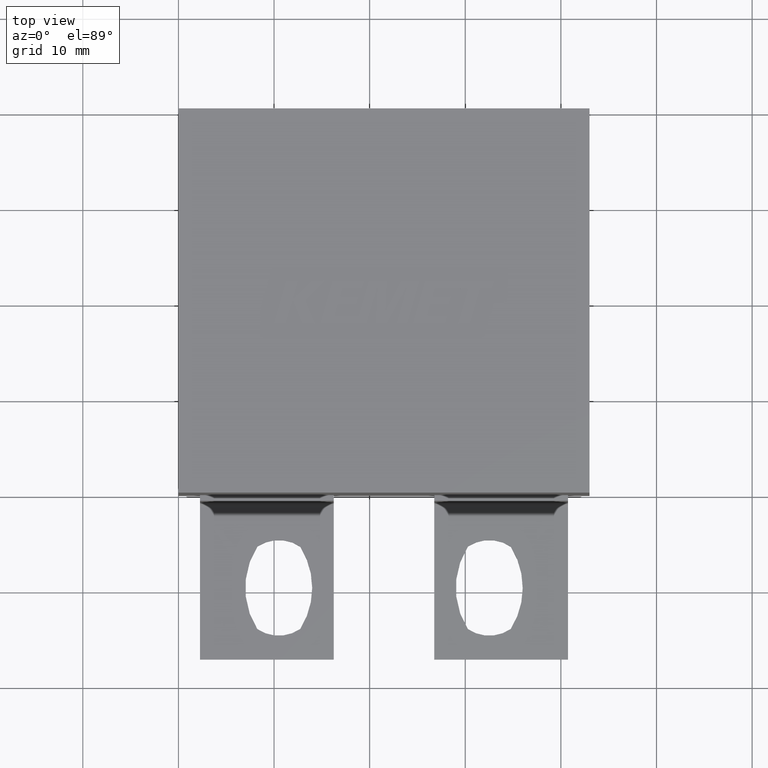
[diagram: clean part render]
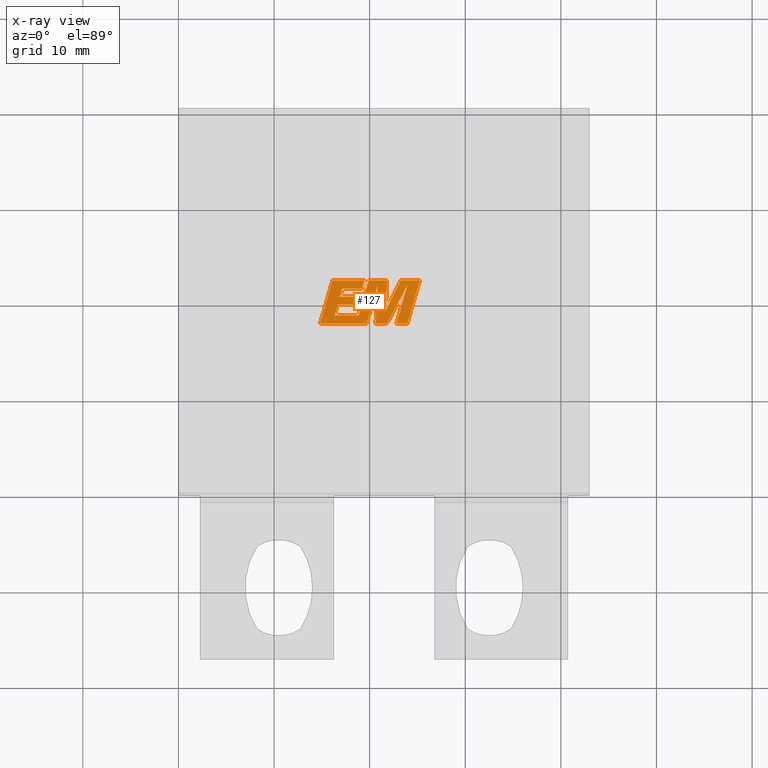
[diagram: x-ray — body ghosted, one internal face saturated and labeled with its STEP entity id]
A machine part, top view, then the same camera in x-ray: the body is ghosted and one INTERNAL B-rep face — a face not visible from any outside direction — is saturated and labeled: STEP entity #127.
In plain terms, the highlighted planar face has unit normal (0, 0, -1).
Its self-contained STEP definition (entity closure, byte-faithful):
#76 = DIRECTION ( 'NONE',  ( 1.000000000000000000, 0.0000000000000000000, 0.0000000000000000000 ) ) ;
#80 = LINE ( 'NONE', #287, #761 ) ;
#83 = LINE ( 'NONE', #2540, #3301 ) ;
#95 = CARTESIAN_POINT ( 'NONE',  ( 16.66149613646253900, 19.65262910936985800, 20.39999999999999900 ) ) ;
#96 = LINE ( 'NONE', #1232, #3308 ) ;
#107 = CARTESIAN_POINT ( 'NONE',  ( 21.65369082282158100, 18.95966520549735200, 20.39999999999999900 ) ) ;
#118 = ORIENTED_EDGE ( 'NONE', *, *, #863, .F. ) ;
#127 = ADVANCED_FACE ( 'NONE', ( #446 ), #1801, .T. ) ;
#183 = EDGE_CURVE ( 'NONE', #2678, #3302, #1933, .T. ) ;
#215 = DIRECTION ( 'NONE',  ( 0.2746459304916928400, 0.9615454294334471200, 0.0000000000000000000 ) ) ;
#233 = VECTOR ( 'NONE', #1962, 1000.000000000000100 ) ;
#248 = VERTEX_POINT ( 'NONE', #1243 ) ;
#280 = CARTESIAN_POINT ( 'NONE',  ( 19.45021176289241200, 22.19109090115733800, 20.39999999999999900 ) ) ;
#282 = EDGE_CURVE ( 'NONE', #1027, #1816, #407, .T. ) ;
#287 = CARTESIAN_POINT ( 'NONE',  ( 19.90137283075741300, 22.19109090115733800, 20.39999999999999900 ) ) ;
#288 = VECTOR ( 'NONE', #1838, 1000.000000000000100 ) ;
#314 = LINE ( 'NONE', #95, #1525 ) ;
#320 = EDGE_CURVE ( 'NONE', #798, #354, #3109, .T. ) ;
#326 = CARTESIAN_POINT ( 'NONE',  ( 18.87479022778897800, 17.66789999999986400, 20.39999999999999900 ) ) ;
#354 = VERTEX_POINT ( 'NONE', #2926 ) ;
#356 = DIRECTION ( 'NONE',  ( 0.2759782365590804900, 0.9611638845408936300, 0.0000000000000000000 ) ) ;
#362 = LINE ( 'NONE', #2591, #2430 ) ;
#407 = LINE ( 'NONE', #1791, #288 ) ;
#416 = VERTEX_POINT ( 'NONE', #867 ) ;
#426 = LINE ( 'NONE', #107, #3216 ) ;
#446 = FACE_OUTER_BOUND ( 'NONE', #2163, .T. ) ;
#474 = VERTEX_POINT ( 'NONE', #605 ) ;
#494 = CARTESIAN_POINT ( 'NONE',  ( 16.34118333098680900, 18.52843981272264200, 20.39999999999999900 ) ) ;
#524 = EDGE_CURVE ( 'NONE', #1848, #416, #2436, .T. ) ;
#525 = LINE ( 'NONE', #3338, #233 ) ;
#551 = VERTEX_POINT ( 'NONE', #2764 ) ;
#568 = ORIENTED_EDGE ( 'NONE', *, *, #524, .F. ) ;
#590 = CARTESIAN_POINT ( 'NONE',  ( 23.25637222146379900, 22.19109090115733800, 20.39999999999999900 ) ) ;
#605 = CARTESIAN_POINT ( 'NONE',  ( 16.90005972271343300, 20.48881194576375400, 20.39999999999999900 ) ) ;
#626 = VECTOR ( 'NONE', #2355, 1000.000000000000100 ) ;
#654 = DIRECTION ( 'NONE',  ( 1.000000000000000000, 0.0000000000000000000, 0.0000000000000000000 ) ) ;
#667 = ORIENTED_EDGE ( 'NONE', *, *, #183, .F. ) ;
#733 = VECTOR ( 'NONE', #76, 1000.000000000000000 ) ;
#734 = VECTOR ( 'NONE', #2395, 1000.000000000000000 ) ;
#761 = VECTOR ( 'NONE', #2722, 1000.000000000000000 ) ;
#776 = CARTESIAN_POINT ( 'NONE',  ( 19.20567927335351000, 21.33012473820824400, 20.39999999999999900 ) ) ;
#798 = VERTEX_POINT ( 'NONE', #2794 ) ;
#817 = LINE ( 'NONE', #2471, #2169 ) ;
#855 = ORIENTED_EDGE ( 'NONE', *, *, #1835, .F. ) ;
#863 = EDGE_CURVE ( 'NONE', #1816, #798, #525, .T. ) ;
#865 = LINE ( 'NONE', #2101, #3314 ) ;
#867 = CARTESIAN_POINT ( 'NONE',  ( 20.83613884040525800, 21.69477796810506500, 20.39999999999999900 ) ) ;
#915 = VECTOR ( 'NONE', #356, 1000.000000000000000 ) ;
#929 = EDGE_CURVE ( 'NONE', #248, #2678, #2342, .T. ) ;
#973 = EDGE_CURVE ( 'NONE', #416, #2878, #362, .T. ) ;
#1002 = ORIENTED_EDGE ( 'NONE', *, *, #1390, .F. ) ;
#1007 = ORIENTED_EDGE ( 'NONE', *, *, #3374, .F. ) ;
#1011 = DIRECTION ( 'NONE',  ( 0.2763139702539127400, 0.9610674221107069500, 0.0000000000000000000 ) ) ;
#1017 = ORIENTED_EDGE ( 'NONE', *, *, #1240, .F. ) ;
#1027 = VERTEX_POINT ( 'NONE', #1811 ) ;
#1048 = EDGE_CURVE ( 'NONE', #1640, #2243, #2546, .T. ) ;
#1063 = CARTESIAN_POINT ( 'NONE',  ( 16.10862990775428500, 22.19109090115733800, 20.39999999999999900 ) ) ;
#1081 = VECTOR ( 'NONE', #1894, 1000.000000000000000 ) ;
#1083 = CARTESIAN_POINT ( 'NONE',  ( 22.79034952489388000, 17.66789999999986800, 20.39999999999999900 ) ) ;
#1107 = EDGE_CURVE ( 'NONE', #551, #1270, #2008, .T. ) ;
#1109 = ORIENTED_EDGE ( 'NONE', *, *, #2239, .F. ) ;
#1154 = LINE ( 'NONE', #280, #2759 ) ;
#1171 = CARTESIAN_POINT ( 'NONE',  ( 23.95230520040987800, 21.71417002716459500, 20.39999999999999900 ) ) ;
#1212 = VERTEX_POINT ( 'NONE', #1063 ) ;
#1232 = CARTESIAN_POINT ( 'NONE',  ( 16.10862990775428500, 22.19109090115733800, 20.39999999999999900 ) ) ;
#1240 = EDGE_CURVE ( 'NONE', #1270, #474, #817, .T. ) ;
#1243 = CARTESIAN_POINT ( 'NONE',  ( 18.84859032180306200, 18.52843981272264200, 20.39999999999999900 ) ) ;
#1270 = VERTEX_POINT ( 'NONE', #1654 ) ;
#1271 = CARTESIAN_POINT ( 'NONE',  ( 23.25637222146379900, 22.19109090115733800, 20.39999999999999900 ) ) ;
#1276 = VECTOR ( 'NONE', #215, 1000.000000000000100 ) ;
#1308 = DIRECTION ( 'NONE',  ( 0.2793947940878301900, 0.9601763114327591700, 0.0000000000000000000 ) ) ;
#1312 = ORIENTED_EDGE ( 'NONE', *, *, #3366, .F. ) ;
#1321 = ORIENTED_EDGE ( 'NONE', *, *, #282, .F. ) ;
#1343 = ORIENTED_EDGE ( 'NONE', *, *, #973, .F. ) ;
#1378 = VECTOR ( 'NONE', #1308, 1000.000000000000200 ) ;
#1390 = EDGE_CURVE ( 'NONE', #2929, #3244, #83, .T. ) ;
#1393 = EDGE_CURVE ( 'NONE', #3302, #551, #314, .T. ) ;
#1403 = DIRECTION ( 'NONE',  ( -1.000000000000000000, 0.0000000000000000000, 0.0000000000000000000 ) ) ;
#1521 = AXIS2_PLACEMENT_3D ( 'NONE', #2365, #1522, #2105 ) ;
#1522 = DIRECTION ( 'NONE',  ( 0.0000000000000000000, 0.0000000000000000000, -1.000000000000000000 ) ) ;
#1525 = VECTOR ( 'NONE', #654, 1000.000000000000000 ) ;
#1562 = CARTESIAN_POINT ( 'NONE',  ( 18.60262749600601500, 19.65262910936985800, 20.39999999999999900 ) ) ;
#1564 = DIRECTION ( 'NONE',  ( 0.2740217765954066100, 0.9617234872620595800, 0.0000000000000000000 ) ) ;
#1576 = ORIENTED_EDGE ( 'NONE', *, *, #320, .F. ) ;
#1579 = EDGE_CURVE ( 'NONE', #354, #1640, #3297, .T. ) ;
#1640 = VERTEX_POINT ( 'NONE', #3107 ) ;
#1654 = CARTESIAN_POINT ( 'NONE',  ( 18.84146614692435800, 20.48881194576375400, 20.39999999999999900 ) ) ;
#1694 = LINE ( 'NONE', #326, #733 ) ;
#1709 = VECTOR ( 'NONE', #1564, 1000.000000000000200 ) ;
#1712 = EDGE_CURVE ( 'NONE', #1952, #248, #80, .T. ) ;
#1744 = VECTOR ( 'NONE', #3360, 1000.000000000000000 ) ;
#1791 = CARTESIAN_POINT ( 'NONE',  ( 21.81626301737630400, 17.66789999999986800, 20.39999999999999900 ) ) ;
#1801 = PLANE ( 'NONE',  #1521 ) ;
#1811 = CARTESIAN_POINT ( 'NONE',  ( 21.81626301737630400, 17.66789999999986800, 20.39999999999999900 ) ) ;
#1814 = CARTESIAN_POINT ( 'NONE',  ( 16.66149613646253900, 19.65262910936985800, 20.39999999999999900 ) ) ;
#1816 = VERTEX_POINT ( 'NONE', #1171 ) ;
#1835 = EDGE_CURVE ( 'NONE', #2548, #1848, #1694, .T. ) ;
#1838 = DIRECTION ( 'NONE',  ( 0.4668459304955213100, 0.8843386665637610300, 0.0000000000000000000 ) ) ;
#1848 = VERTEX_POINT ( 'NONE', #2796 ) ;
#1864 = ORIENTED_EDGE ( 'NONE', *, *, #2939, .F. ) ;
#1894 = DIRECTION ( 'NONE',  ( 1.000000000000000000, 0.0000000000000000000, 0.0000000000000000000 ) ) ;
#1903 = LINE ( 'NONE', #2250, #3079 ) ;
#1933 = LINE ( 'NONE', #2593, #1709 ) ;
#1942 = LINE ( 'NONE', #2134, #1378 ) ;
#1952 = VERTEX_POINT ( 'NONE', #2808 ) ;
#1962 = DIRECTION ( 'NONE',  ( -0.2760118818968561000, -0.9611542233438689100, 0.0000000000000000000 ) ) ;
#1985 = CARTESIAN_POINT ( 'NONE',  ( 19.67990450997458800, 17.66789999999986400, 20.39999999999999900 ) ) ;
#2007 = DIRECTION ( 'NONE',  ( 0.05375259206908346300, 0.9985542843760947300, 0.0000000000000000000 ) ) ;
#2008 = LINE ( 'NONE', #1562, #1276 ) ;
#2019 = EDGE_CURVE ( 'NONE', #3087, #2032, #426, .T. ) ;
#2032 = VERTEX_POINT ( 'NONE', #3427 ) ;
#2064 = ORIENTED_EDGE ( 'NONE', *, *, #2398, .F. ) ;
#2069 = CARTESIAN_POINT ( 'NONE',  ( 18.84859032180306200, 18.52843981272264200, 20.39999999999999900 ) ) ;
#2083 = EDGE_CURVE ( 'NONE', #2243, #3087, #2961, .T. ) ;
#2101 = CARTESIAN_POINT ( 'NONE',  ( 19.20567927335351000, 21.33012473820824400, 20.39999999999999900 ) ) ;
#2105 = DIRECTION ( 'NONE',  ( -1.000000000000000000, 0.0000000000000000000, 0.0000000000000000000 ) ) ;
#2134 = CARTESIAN_POINT ( 'NONE',  ( 16.90005972271343300, 20.48881194576375400, 20.39999999999999900 ) ) ;
#2163 = EDGE_LOOP ( 'NONE', ( #3322, #3016, #1576, #118, #1321, #1864, #1343, #568, #855, #1312, #1007, #2498, #1002, #1109, #1017, #2279, #2656, #667, #3013, #2482, #2064, #2737, #3199 ) ) ;
#2165 = DIRECTION ( 'NONE',  ( -1.000000000000000000, 0.0000000000000000000, 0.0000000000000000000 ) ) ;
#2169 = VECTOR ( 'NONE', #2201, 1000.000000000000000 ) ;
#2201 = DIRECTION ( 'NONE',  ( -1.000000000000000000, 0.0000000000000000000, 0.0000000000000000000 ) ) ;
#2209 = VERTEX_POINT ( 'NONE', #2662 ) ;
#2239 = EDGE_CURVE ( 'NONE', #474, #2929, #1942, .T. ) ;
#2243 = VERTEX_POINT ( 'NONE', #590 ) ;
#2250 = CARTESIAN_POINT ( 'NONE',  ( 21.82763981081164700, 22.19109090115733800, 20.39999999999999900 ) ) ;
#2279 = ORIENTED_EDGE ( 'NONE', *, *, #1107, .F. ) ;
#2337 = CARTESIAN_POINT ( 'NONE',  ( 21.65369082282158100, 18.95966520549735200, 20.39999999999999900 ) ) ;
#2342 = LINE ( 'NONE', #2069, #1744 ) ;
#2355 = DIRECTION ( 'NONE',  ( -0.4443210308329073600, -0.8958676361827023800, 0.0000000000000000000 ) ) ;
#2365 = CARTESIAN_POINT ( 'NONE',  ( -0.06707117159376017900, 1.023740749040429100, 20.39999999999999100 ) ) ;
#2395 = DIRECTION ( 'NONE',  ( -1.000000000000000000, 0.0000000000000000000, 0.0000000000000000000 ) ) ;
#2398 = EDGE_CURVE ( 'NONE', #2032, #1952, #1903, .T. ) ;
#2406 = DIRECTION ( 'NONE',  ( 0.2732148821746313000, 0.9619530280415474800, 0.0000000000000000000 ) ) ;
#2430 = VECTOR ( 'NONE', #2874, 1000.000000000000000 ) ;
#2436 = LINE ( 'NONE', #1985, #915 ) ;
#2471 = CARTESIAN_POINT ( 'NONE',  ( 18.84146614692435800, 20.48881194576375400, 20.39999999999999900 ) ) ;
#2482 = ORIENTED_EDGE ( 'NONE', *, *, #1712, .F. ) ;
#2498 = ORIENTED_EDGE ( 'NONE', *, *, #3218, .F. ) ;
#2531 = DIRECTION ( 'NONE',  ( 1.000000000000000000, 0.0000000000000000000, 0.0000000000000000000 ) ) ;
#2538 = VECTOR ( 'NONE', #1011, 1000.000000000000100 ) ;
#2540 = CARTESIAN_POINT ( 'NONE',  ( 17.14486727691953000, 21.33012473820824400, 20.39999999999999900 ) ) ;
#2546 = LINE ( 'NONE', #3197, #734 ) ;
#2548 = VERTEX_POINT ( 'NONE', #3426 ) ;
#2591 = CARTESIAN_POINT ( 'NONE',  ( 20.83613884040525800, 21.69477796810506500, 20.39999999999999900 ) ) ;
#2593 = CARTESIAN_POINT ( 'NONE',  ( 16.34118333098680900, 18.52843981272264200, 20.39999999999999900 ) ) ;
#2656 = ORIENTED_EDGE ( 'NONE', *, *, #1393, .F. ) ;
#2662 = CARTESIAN_POINT ( 'NONE',  ( 19.45021176289241200, 22.19109090115733800, 20.39999999999999900 ) ) ;
#2678 = VERTEX_POINT ( 'NONE', #494 ) ;
#2722 = DIRECTION ( 'NONE',  ( -0.2762517575166429900, -0.9610853065513830200, 0.0000000000000000000 ) ) ;
#2737 = ORIENTED_EDGE ( 'NONE', *, *, #2019, .F. ) ;
#2759 = VECTOR ( 'NONE', #2165, 1000.000000000000000 ) ;
#2764 = CARTESIAN_POINT ( 'NONE',  ( 18.60262749600601500, 19.65262910936985800, 20.39999999999999900 ) ) ;
#2794 = CARTESIAN_POINT ( 'NONE',  ( 22.79034952489388000, 17.66789999999986800, 20.39999999999999900 ) ) ;
#2796 = CARTESIAN_POINT ( 'NONE',  ( 19.67990450997458800, 17.66789999999986400, 20.39999999999999900 ) ) ;
#2808 = CARTESIAN_POINT ( 'NONE',  ( 19.90137283075741300, 22.19109090115733800, 20.39999999999999900 ) ) ;
#2864 = DIRECTION ( 'NONE',  ( -0.2765379750249964400, -0.9610029908221277000, 0.0000000000000000000 ) ) ;
#2874 = DIRECTION ( 'NONE',  ( -0.05596501978068312000, -0.9984327301130245800, 0.0000000000000000000 ) ) ;
#2878 = VERTEX_POINT ( 'NONE', #3034 ) ;
#2926 = CARTESIAN_POINT ( 'NONE',  ( 23.93976225156585600, 17.66789999999986800, 20.39999999999999900 ) ) ;
#2929 = VERTEX_POINT ( 'NONE', #3114 ) ;
#2939 = EDGE_CURVE ( 'NONE', #2878, #1027, #3196, .T. ) ;
#2961 = LINE ( 'NONE', #1271, #626 ) ;
#3013 = ORIENTED_EDGE ( 'NONE', *, *, #929, .F. ) ;
#3016 = ORIENTED_EDGE ( 'NONE', *, *, #1579, .F. ) ;
#3034 = CARTESIAN_POINT ( 'NONE',  ( 20.61042077413764800, 17.66789999999986800, 20.39999999999999900 ) ) ;
#3079 = VECTOR ( 'NONE', #1403, 1000.000000000000000 ) ;
#3087 = VERTEX_POINT ( 'NONE', #2337 ) ;
#3107 = CARTESIAN_POINT ( 'NONE',  ( 25.24021298723882700, 22.19109090115733800, 20.39999999999999900 ) ) ;
#3109 = LINE ( 'NONE', #1083, #1081 ) ;
#3114 = CARTESIAN_POINT ( 'NONE',  ( 17.14486727691953000, 21.33012473820824400, 20.39999999999999900 ) ) ;
#3196 = LINE ( 'NONE', #3348, #3361 ) ;
#3197 = CARTESIAN_POINT ( 'NONE',  ( 25.24021298723882700, 22.19109090115733800, 20.39999999999999900 ) ) ;
#3199 = ORIENTED_EDGE ( 'NONE', *, *, #2083, .F. ) ;
#3216 = VECTOR ( 'NONE', #2007, 1000.000000000000000 ) ;
#3218 = EDGE_CURVE ( 'NONE', #3244, #2209, #865, .T. ) ;
#3244 = VERTEX_POINT ( 'NONE', #776 ) ;
#3297 = LINE ( 'NONE', #3384, #2538 ) ;
#3301 = VECTOR ( 'NONE', #3371, 1000.000000000000000 ) ;
#3302 = VERTEX_POINT ( 'NONE', #1814 ) ;
#3308 = VECTOR ( 'NONE', #2864, 1000.000000000000100 ) ;
#3314 = VECTOR ( 'NONE', #2406, 1000.000000000000100 ) ;
#3322 = ORIENTED_EDGE ( 'NONE', *, *, #1048, .F. ) ;
#3338 = CARTESIAN_POINT ( 'NONE',  ( 23.95230520040987800, 21.71417002716459500, 20.39999999999999900 ) ) ;
#3348 = CARTESIAN_POINT ( 'NONE',  ( 20.61042077413764800, 17.66789999999986800, 20.39999999999999900 ) ) ;
#3360 = DIRECTION ( 'NONE',  ( -1.000000000000000000, 0.0000000000000000000, 0.0000000000000000000 ) ) ;
#3361 = VECTOR ( 'NONE', #2531, 1000.000000000000000 ) ;
#3366 = EDGE_CURVE ( 'NONE', #1212, #2548, #96, .T. ) ;
#3371 = DIRECTION ( 'NONE',  ( 1.000000000000000000, 0.0000000000000000000, 0.0000000000000000000 ) ) ;
#3374 = EDGE_CURVE ( 'NONE', #2209, #1212, #1154, .T. ) ;
#3384 = CARTESIAN_POINT ( 'NONE',  ( 23.93976225156585600, 17.66789999999986800, 20.39999999999999900 ) ) ;
#3426 = CARTESIAN_POINT ( 'NONE',  ( 14.80703765007827100, 17.66789999999986400, 20.39999999999999900 ) ) ;
#3427 = CARTESIAN_POINT ( 'NONE',  ( 21.82763981081164700, 22.19109090115733800, 20.39999999999999900 ) ) ;